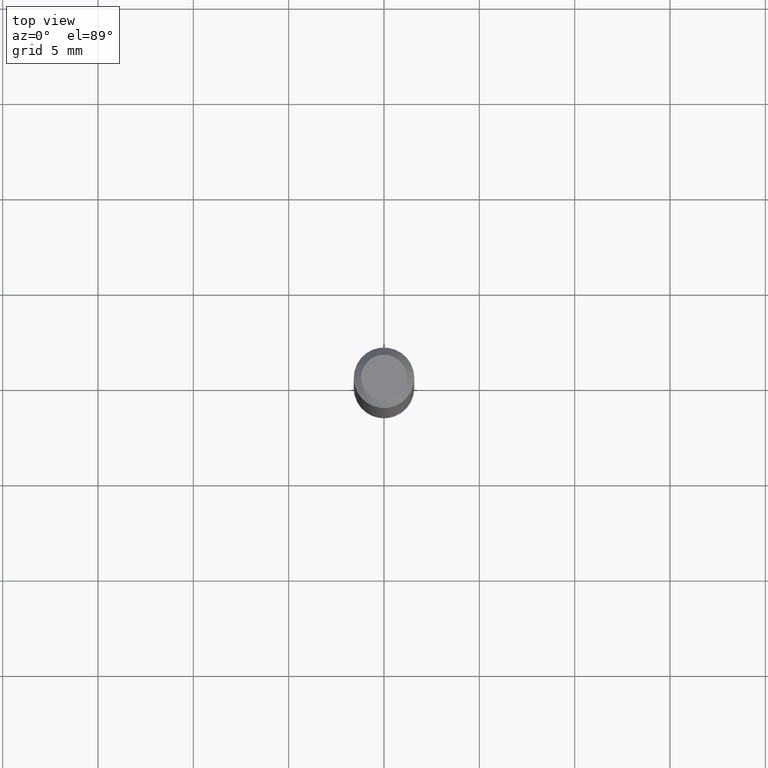
[diagram: clean part render]
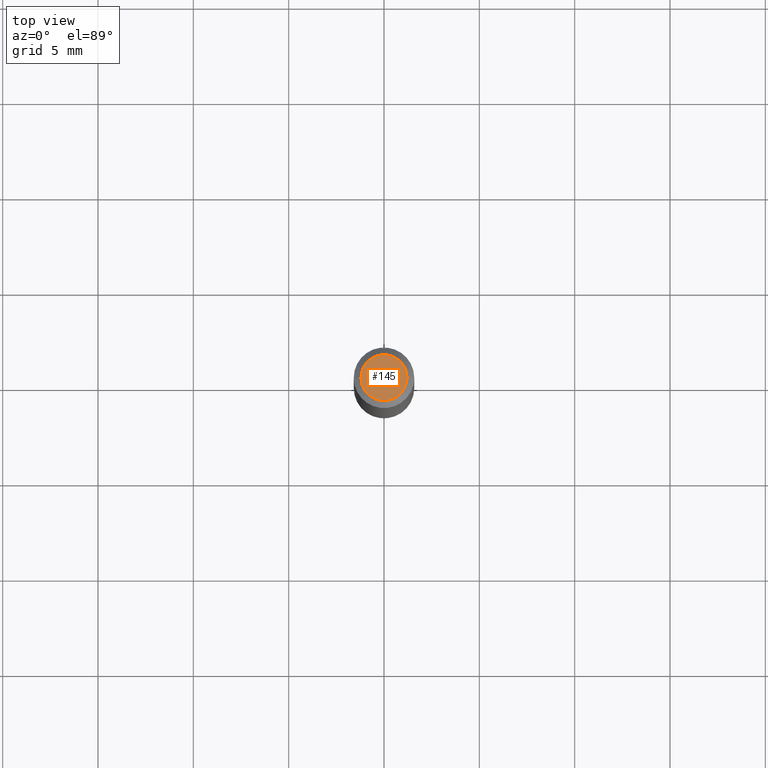
[diagram: same view with one face highlighted and labeled with its STEP entity id]
A machine part, top view. The second image highlights one B-rep face of the part: STEP entity #145.
In plain terms, the highlighted planar face has unit normal (0, -0, -1).
Its self-contained STEP definition (entity closure, byte-faithful):
#29 = DIRECTION ( 'NONE',  ( 2.438088387897960049E-29, -3.491481338843145188E-15, -1.000000000000000000 ) ) ;
#32 = AXIS2_PLACEMENT_3D ( 'NONE', #55, #212, #136 ) ;
#55 = CARTESIAN_POINT ( 'NONE',  ( 1.124489007074299301E-44, -1.605472281635369412E-30, -4.598255370218649310E-16 ) ) ;
#73 = ORIENTED_EDGE ( 'NONE', *, *, #231, .T. ) ;
#84 = CIRCLE ( 'NONE', #32, 0.04749999999999999362 ) ;
#136 = DIRECTION ( 'NONE',  ( 1.000000000000000000, -6.982962677686267499E-15, 4.852736867747366768E-29 ) ) ;
#145 = ADVANCED_FACE ( 'NONE', ( #285 ), #219, .F. ) ;
#147 = EDGE_LOOP ( 'NONE', ( #73, #397 ) ) ;
#156 = CIRCLE ( 'NONE', #249, 0.04749999999999999362 ) ;
#182 = DIRECTION ( 'NONE',  ( -1.000000000000000000, 6.982962677686265922E-15, -4.876176775795935793E-29 ) ) ;
#184 = VERTEX_POINT ( 'NONE', #458 ) ;
#197 = CARTESIAN_POINT ( 'NONE',  ( -0.04749999999999999362, 3.578768372314203110E-16, -4.598255370218673962E-16 ) ) ;
#212 = DIRECTION ( 'NONE',  ( -2.445468806185136597E-29, 3.491481338843145583E-15, 1.000000000000000000 ) ) ;
#219 = PLANE ( 'NONE',  #375 ) ;
#231 = EDGE_CURVE ( 'NONE', #236, #184, #84, .T. ) ;
#236 = VERTEX_POINT ( 'NONE', #197 ) ;
#249 = AXIS2_PLACEMENT_3D ( 'NONE', #303, #334, #275 ) ;
#269 = EDGE_CURVE ( 'NONE', #184, #236, #156, .T. ) ;
#275 = DIRECTION ( 'NONE',  ( 1.000000000000000000, -6.982962677686267499E-15, 4.852736867747366768E-29 ) ) ;
#285 = FACE_OUTER_BOUND ( 'NONE', #147, .T. ) ;
#303 = CARTESIAN_POINT ( 'NONE',  ( 1.124489007074299301E-44, -1.605472281635369412E-30, -4.598255370218649310E-16 ) ) ;
#334 = DIRECTION ( 'NONE',  ( -2.445468806185136597E-29, 3.491481338843145583E-15, 1.000000000000000000 ) ) ;
#360 = CARTESIAN_POINT ( 'NONE',  ( 3.316907271900976096E-16, 0.04749999999999999362, -3.957581321059819112E-16 ) ) ;
#375 = AXIS2_PLACEMENT_3D ( 'NONE', #360, #29, #182 ) ;
#397 = ORIENTED_EDGE ( 'NONE', *, *, #269, .T. ) ;
#458 = CARTESIAN_POINT ( 'NONE',  ( 0.04749999999999999362, -4.035134999187586019E-16, -4.598255370218623672E-16 ) ) ;